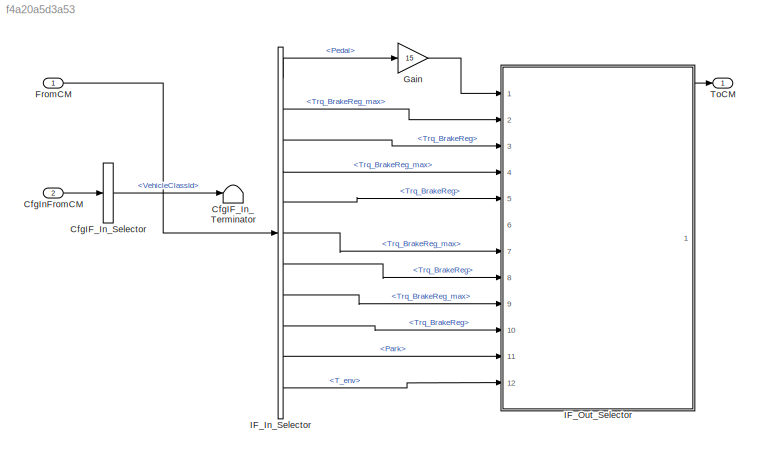
MODEL slx_f4a20a5d3a53
KIND model
CONFIG AbsTol = auto
CONFIG EnableMultiTasking = off
CONFIG FixedStep = 0.001
CONFIG InitFcn = vehicle = 'Car'; if ~length(which('cmself')), cmenv; end\nBrakeJenkins_bus
CONFIG MaxStep = auto
CONFIG MinStep = auto
CONFIG PreLoadFcn = vehicle = 'Car'; if ~length(which('cmself')), cmenv; end\nBrakeJenkins_bus
CONFIG RelTol = 1e-3
CONFIG SampleTimeConstraint = Unconstrained
CONFIG SolverName = ode1
CONFIG StartTime = 0.0
CONFIG StopTime = inf
BLOCK [BusSelector] CfgIF_In_Selector
  OutputSignals = VehicleClassId
  Ports = [1, 1]
BLOCK [Terminator] CfgIF_In_Terminator
BLOCK [Inport] CfgInFromCM
  OutDataTypeStr = Bus: cmBrakeCfgIn
  Port = 2
BLOCK [Inport] FromCM
  OutDataTypeStr = Bus: cmBrakeIn
BLOCK [Gain] Gain
  Gain = 15
BLOCK [BusSelector] IF_In_Selector
  OutputSignals = Pedal,WheelIn.FL.Trq_BrakeReg_max,WheelIn.FL.Trq_BrakeReg,WheelIn.FR.Trq_BrakeReg_max,WheelIn.FR.Trq_BrakeReg,WheelIn.RL.Trq_BrakeReg_max,WheelIn.RL.Trq_BrakeReg,WheelIn.RR.Trq_BrakeReg_max,WheelIn.RR.Trq_BrakeReg,Park,T_env
  Ports = [1, 11]
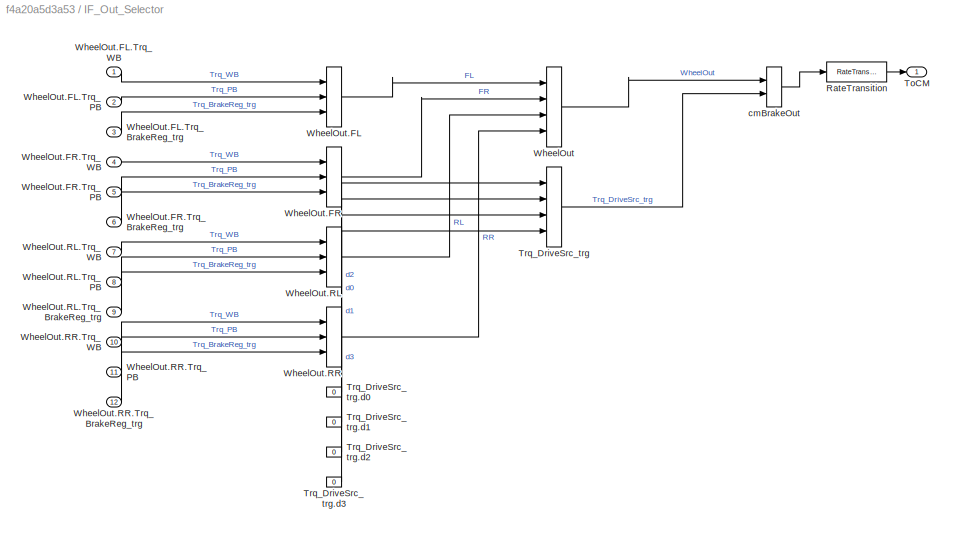
BLOCK [SubSystem] IF_Out_Selector
  OpenFcn = cmSignalSelect('SignalSelection_CB',gcb)
  Ports = [12, 1]
  RequestExecContextInheritance = off
  UserDataPersistent = on
BLOCK [RateTransition] IF_Out_Selector/RateTransition
  OutPortSampleTime = str2num(get_param(bdroot,'FixedStep'))
BLOCK [Outport] IF_Out_Selector/ToCM
BLOCK [BusCreator] IF_Out_Selector/Trq_DriveSrc_trg
  InheritFromInputs = on
  Inputs = 4
  Ports = [4, 1]
BLOCK [Constant] IF_Out_Selector/Trq_DriveSrc_trg.d0
  Value = 0
BLOCK [Constant] IF_Out_Selector/Trq_DriveSrc_trg.d1
  Value = 0
BLOCK [Constant] IF_Out_Selector/Trq_DriveSrc_trg.d2
  Value = 0
BLOCK [Constant] IF_Out_Selector/Trq_DriveSrc_trg.d3
  Value = 0
BLOCK [BusCreator] IF_Out_Selector/WheelOut
  InheritFromInputs = on
  Inputs = 4
  Ports = [4, 1]
BLOCK [BusCreator] IF_Out_Selector/WheelOut.FL
  InheritFromInputs = on
  Inputs = 3
  Ports = [3, 1]
BLOCK [Inport] IF_Out_Selector/WheelOut.FL.Trq_BrakeReg_trg
  Port = 3
BLOCK [Inport] IF_Out_Selector/WheelOut.FL.Trq_PB
  Port = 2
BLOCK [Inport] IF_Out_Selector/WheelOut.FL.Trq_WB
BLOCK [BusCreator] IF_Out_Selector/WheelOut.FR
  InheritFromInputs = on
  Inputs = 3
  Ports = [3, 1]
BLOCK [Inport] IF_Out_Selector/WheelOut.FR.Trq_BrakeReg_trg
  Port = 6
BLOCK [Inport] IF_Out_Selector/WheelOut.FR.Trq_PB
  Port = 5
BLOCK [Inport] IF_Out_Selector/WheelOut.FR.Trq_WB
  Port = 4
BLOCK [BusCreator] IF_Out_Selector/WheelOut.RL
  InheritFromInputs = on
  Inputs = 3
  Ports = [3, 1]
BLOCK [Inport] IF_Out_Selector/WheelOut.RL.Trq_BrakeReg_trg
  Port = 9
BLOCK [Inport] IF_Out_Selector/WheelOut.RL.Trq_PB
  Port = 8
BLOCK [Inport] IF_Out_Selector/WheelOut.RL.Trq_WB
  Port = 7
BLOCK [BusCreator] IF_Out_Selector/WheelOut.RR
  InheritFromInputs = on
  Inputs = 3
  Ports = [3, 1]
BLOCK [Inport] IF_Out_Selector/WheelOut.RR.Trq_BrakeReg_trg
  Port = 12
BLOCK [Inport] IF_Out_Selector/WheelOut.RR.Trq_PB
  Port = 11
BLOCK [Inport] IF_Out_Selector/WheelOut.RR.Trq_WB
  Port = 10
BLOCK [BusCreator] IF_Out_Selector/cmBrakeOut
  InheritFromInputs = on
  Inputs = 2
  Ports = [2, 1]
BLOCK [Outport] ToCM
  OutDataTypeStr = Bus: cmBrakeOut
LINE CfgIF_In_Selector:1 -> CfgIF_In_Terminator:1
LINE CfgInFromCM:1 -> CfgIF_In_Selector:1
LINE FromCM:1 -> IF_In_Selector:1
LINE Gain:1 -> IF_Out_Selector:1
LINE IF_In_Selector:1 -> Gain:1
LINE IF_In_Selector:10 -> IF_Out_Selector:11
LINE IF_In_Selector:11 -> IF_Out_Selector:12
LINE IF_In_Selector:2 -> IF_Out_Selector:2
LINE IF_In_Selector:3 -> IF_Out_Selector:3
LINE IF_In_Selector:4 -> IF_Out_Selector:4
LINE IF_In_Selector:5 -> IF_Out_Selector:5
LINE IF_In_Selector:6 -> IF_Out_Selector:7
LINE IF_In_Selector:7 -> IF_Out_Selector:8
LINE IF_In_Selector:8 -> IF_Out_Selector:9
LINE IF_In_Selector:9 -> IF_Out_Selector:10
LINE IF_Out_Selector/RateTransition:1 -> IF_Out_Selector/ToCM:1
LINE IF_Out_Selector/Trq_DriveSrc_trg.d0:1 -> IF_Out_Selector/Trq_DriveSrc_trg:1
LINE IF_Out_Selector/Trq_DriveSrc_trg.d1:1 -> IF_Out_Selector/Trq_DriveSrc_trg:2
LINE IF_Out_Selector/Trq_DriveSrc_trg.d2:1 -> IF_Out_Selector/Trq_DriveSrc_trg:3
LINE IF_Out_Selector/Trq_DriveSrc_trg.d3:1 -> IF_Out_Selector/Trq_DriveSrc_trg:4
LINE IF_Out_Selector/Trq_DriveSrc_trg:1 -> IF_Out_Selector/cmBrakeOut:2
LINE IF_Out_Selector/WheelOut.FL.Trq_BrakeReg_trg:1 -> IF_Out_Selector/WheelOut.FL:3
LINE IF_Out_Selector/WheelOut.FL.Trq_PB:1 -> IF_Out_Selector/WheelOut.FL:2
LINE IF_Out_Selector/WheelOut.FL.Trq_WB:1 -> IF_Out_Selector/WheelOut.FL:1
LINE IF_Out_Selector/WheelOut.FL:1 -> IF_Out_Selector/WheelOut:1
LINE IF_Out_Selector/WheelOut.FR.Trq_BrakeReg_trg:1 -> IF_Out_Selector/WheelOut.FR:3
LINE IF_Out_Selector/WheelOut.FR.Trq_PB:1 -> IF_Out_Selector/WheelOut.FR:2
LINE IF_Out_Selector/WheelOut.FR.Trq_WB:1 -> IF_Out_Selector/WheelOut.FR:1
LINE IF_Out_Selector/WheelOut.FR:1 -> IF_Out_Selector/WheelOut:2
LINE IF_Out_Selector/WheelOut.RL.Trq_BrakeReg_trg:1 -> IF_Out_Selector/WheelOut.RL:3
LINE IF_Out_Selector/WheelOut.RL.Trq_PB:1 -> IF_Out_Selector/WheelOut.RL:2
LINE IF_Out_Selector/WheelOut.RL.Trq_WB:1 -> IF_Out_Selector/WheelOut.RL:1
LINE IF_Out_Selector/WheelOut.RL:1 -> IF_Out_Selector/WheelOut:3
LINE IF_Out_Selector/WheelOut.RR.Trq_BrakeReg_trg:1 -> IF_Out_Selector/WheelOut.RR:3
LINE IF_Out_Selector/WheelOut.RR.Trq_PB:1 -> IF_Out_Selector/WheelOut.RR:2
LINE IF_Out_Selector/WheelOut.RR.Trq_WB:1 -> IF_Out_Selector/WheelOut.RR:1
LINE IF_Out_Selector/WheelOut.RR:1 -> IF_Out_Selector/WheelOut:4
LINE IF_Out_Selector/WheelOut:1 -> IF_Out_Selector/cmBrakeOut:1
LINE IF_Out_Selector/cmBrakeOut:1 -> IF_Out_Selector/RateTransition:1
LINE IF_Out_Selector:1 -> ToCM:1
